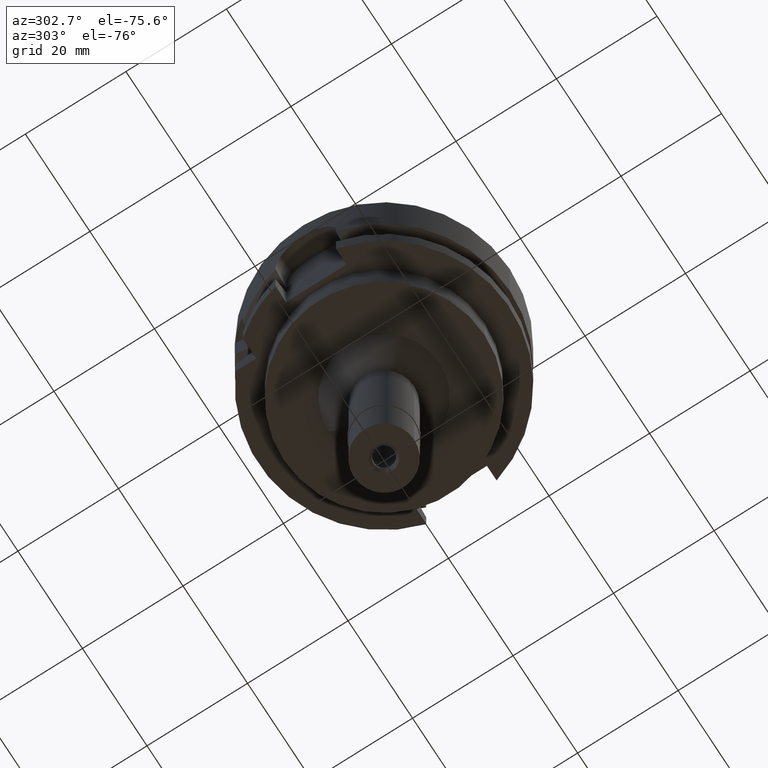
[diagram: clean part render]
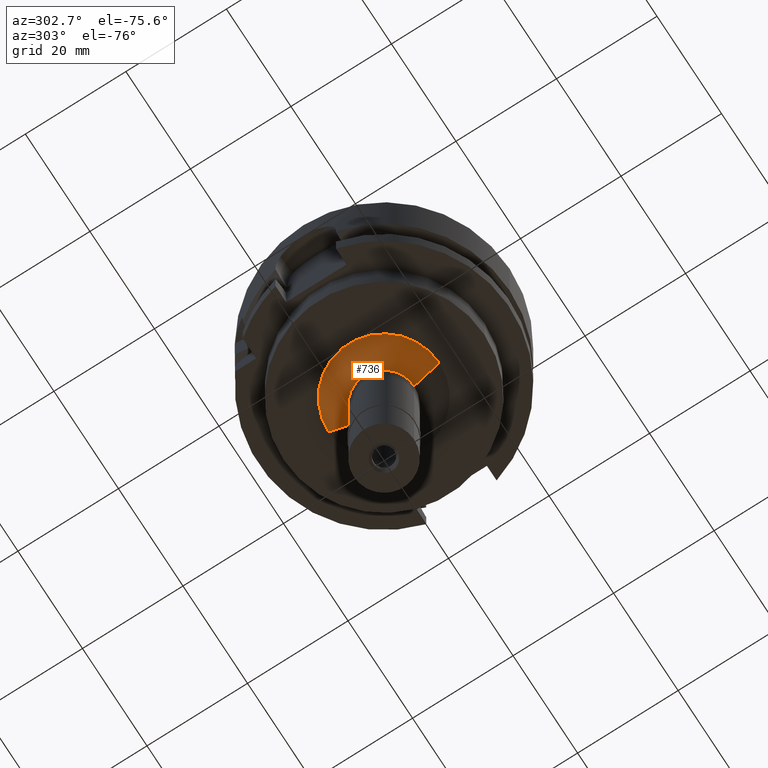
[diagram: same view with one face highlighted and labeled with its STEP entity id]
A machine part, auxiliary view. The second image highlights one B-rep face of the part: STEP entity #736.
In plain terms, the highlighted conical surface has half-angle 45 deg.
Its self-contained STEP definition (entity closure, byte-faithful):
#74 = CARTESIAN_POINT ( 'NONE',  ( 0.0000000000000000000, 11.00000000000000000, -34.00000000000000000 ) ) ;
#187 = ORIENTED_EDGE ( 'NONE', *, *, #4028, .F. ) ;
#242 = ORIENTED_EDGE ( 'NONE', *, *, #2026, .T. ) ;
#301 = VERTEX_POINT ( 'NONE', #3835 ) ;
#344 = DIRECTION ( 'NONE',  ( 0.0000000000000000000, 0.7071067811865474617, -0.7071067811865474617 ) ) ;
#541 = CARTESIAN_POINT ( 'NONE',  ( 0.0000000000000000000, -6.000000000000000000, -39.00000000000000000 ) ) ;
#645 = EDGE_CURVE ( 'NONE', #301, #3843, #2216, .T. ) ;
#736 = ADVANCED_FACE ( 'NONE', ( #3468 ), #3650, .T. ) ;
#844 = AXIS2_PLACEMENT_3D ( 'NONE', #4886, #4443, #1485 ) ;
#1270 = CIRCLE ( 'NONE', #4752, 6.000000000000000000 ) ;
#1296 = CARTESIAN_POINT ( 'NONE',  ( 0.0000000000000000000, 11.00000000000000000, -34.00000000000000000 ) ) ;
#1310 = VERTEX_POINT ( 'NONE', #1312 ) ;
#1312 = CARTESIAN_POINT ( 'NONE',  ( 0.0000000000000000000, 6.000000000000000000, -39.00000000000000000 ) ) ;
#1320 = EDGE_LOOP ( 'NONE', ( #187, #3750, #1625, #242 ) ) ;
#1485 = DIRECTION ( 'NONE',  ( 0.0000000000000000000, -1.000000000000000000, 0.0000000000000000000 ) ) ;
#1581 = DIRECTION ( 'NONE',  ( 0.0000000000000000000, 1.000000000000000000, 0.0000000000000000000 ) ) ;
#1625 = ORIENTED_EDGE ( 'NONE', *, *, #2376, .T. ) ;
#2026 = EDGE_CURVE ( 'NONE', #2595, #1310, #2734, .T. ) ;
#2048 = DIRECTION ( 'NONE',  ( 0.0000000000000000000, 0.0000000000000000000, -1.000000000000000000 ) ) ;
#2216 = LINE ( 'NONE', #3715, #3487 ) ;
#2289 = AXIS2_PLACEMENT_3D ( 'NONE', #2793, #3449, #1581 ) ;
#2376 = EDGE_CURVE ( 'NONE', #301, #2595, #3118, .T. ) ;
#2484 = CARTESIAN_POINT ( 'NONE',  ( 0.0000000000000000000, 0.0000000000000000000, -39.00000000000000000 ) ) ;
#2502 = DIRECTION ( 'NONE',  ( 0.0000000000000000000, -1.000000000000000000, 0.0000000000000000000 ) ) ;
#2595 = VERTEX_POINT ( 'NONE', #74 ) ;
#2734 = LINE ( 'NONE', #1296, #4859 ) ;
#2793 = CARTESIAN_POINT ( 'NONE',  ( 0.0000000000000000000, 0.0000000000000000000, -36.50000000000000000 ) ) ;
#3118 = CIRCLE ( 'NONE', #844, 11.00000000000000000 ) ;
#3129 = DIRECTION ( 'NONE',  ( 0.0000000000000000000, -0.7071067811865474617, -0.7071067811865474617 ) ) ;
#3449 = DIRECTION ( 'NONE',  ( 0.0000000000000000000, 0.0000000000000000000, 1.000000000000000000 ) ) ;
#3468 = FACE_OUTER_BOUND ( 'NONE', #1320, .T. ) ;
#3487 = VECTOR ( 'NONE', #344, 1000.000000000000114 ) ;
#3650 = CONICAL_SURFACE ( 'NONE', #2289, 8.500000000000000000, 0.7853981633972997312 ) ;
#3715 = CARTESIAN_POINT ( 'NONE',  ( 0.0000000000000000000, -11.00000000000000000, -34.00000000000000000 ) ) ;
#3750 = ORIENTED_EDGE ( 'NONE', *, *, #645, .F. ) ;
#3835 = CARTESIAN_POINT ( 'NONE',  ( 0.0000000000000000000, -11.00000000000000000, -34.00000000000000000 ) ) ;
#3843 = VERTEX_POINT ( 'NONE', #541 ) ;
#4028 = EDGE_CURVE ( 'NONE', #3843, #1310, #1270, .T. ) ;
#4443 = DIRECTION ( 'NONE',  ( 0.0000000000000000000, 0.0000000000000000000, -1.000000000000000000 ) ) ;
#4752 = AXIS2_PLACEMENT_3D ( 'NONE', #2484, #2048, #2502 ) ;
#4859 = VECTOR ( 'NONE', #3129, 1000.000000000000114 ) ;
#4886 = CARTESIAN_POINT ( 'NONE',  ( 0.0000000000000000000, 0.0000000000000000000, -34.00000000000000000 ) ) ;